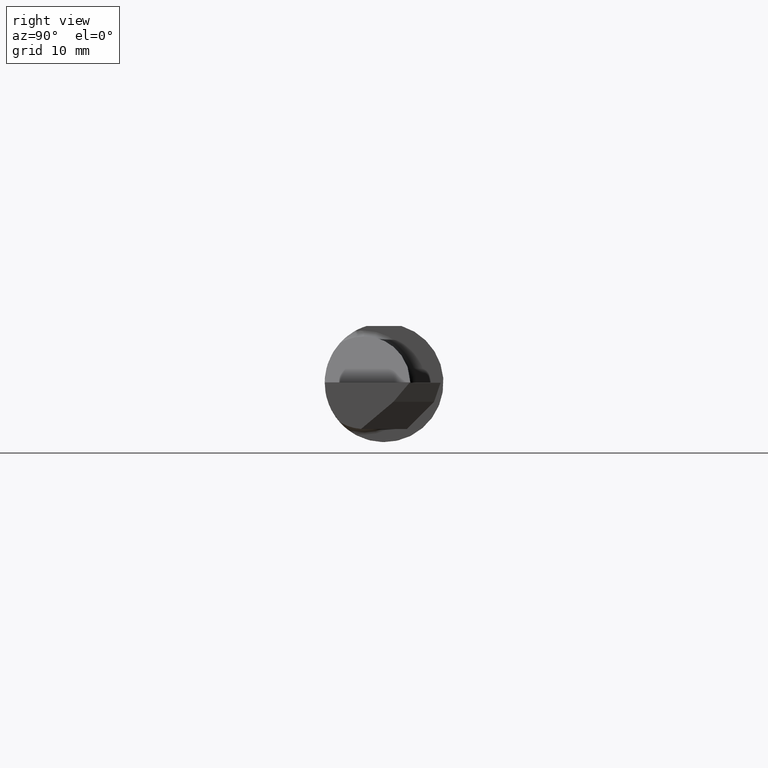
[diagram: clean part render]
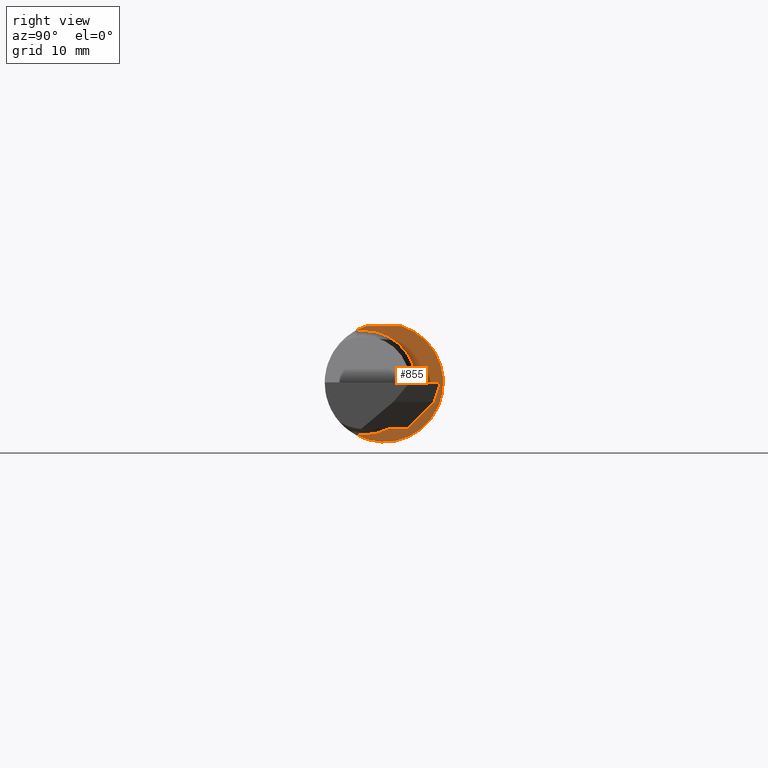
[diagram: same view with one face highlighted and labeled with its STEP entity id]
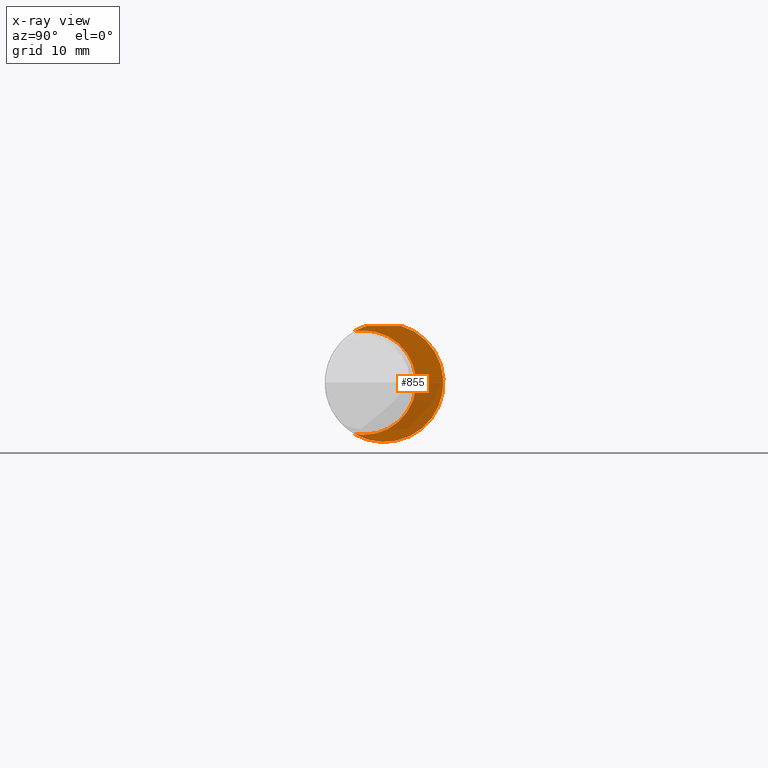
[diagram: x-ray of the same camera — body ghosted, the highlighted face saturated]
A machine part, right view. The second image highlights one B-rep face of the part: STEP entity #855.
The next image is the same camera in x-ray: the body ghosted, the highlighted face saturated — about 26% of this face is hidden behind the body in this view.
In plain terms, the highlighted planar face has unit normal (1, 0, 0).
Its self-contained STEP definition (entity closure, byte-faithful):
#52 = CARTESIAN_POINT ( 'NONE',  ( 1.925000000000000266, -0.1250709781968178946, -0.2162921009026707309 ) ) ;
#77 = DIRECTION ( 'NONE',  ( 0.000000000000000000, -1.000000000000000000, 0.000000000000000000 ) ) ;
#87 = DIRECTION ( 'NONE',  ( 0.000000000000000000, 0.000000000000000000, -1.000000000000000000 ) ) ;
#88 = VERTEX_POINT ( 'NONE', #965 ) ;
#90 = CARTESIAN_POINT ( 'NONE',  ( 1.925000000000000266, -0.08485000000000002263, 0.000000000000000000 ) ) ;
#95 = CIRCLE ( 'NONE', #170, 0.2200000000000000011 ) ;
#98 = DIRECTION ( 'NONE',  ( 0.000000000000000000, 0.000000000000000000, -1.000000000000000000 ) ) ;
#128 = VECTOR ( 'NONE', #77, 39.37007874015748143 ) ;
#148 = CARTESIAN_POINT ( 'NONE',  ( 1.925000000000000266, 0.1000000000000000056, 0.2388499999999999790 ) ) ;
#155 = CIRCLE ( 'NONE', #579, 0.2498499999999999888 ) ;
#156 = CIRCLE ( 'NONE', #580, 0.2200000000000000011 ) ;
#170 = AXIS2_PLACEMENT_3D ( 'NONE', #782, #353, #578 ) ;
#179 = EDGE_CURVE ( 'NONE', #519, #88, #879, .T. ) ;
#184 = DIRECTION ( 'NONE',  ( 0.000000000000000000, 0.000000000000000000, -1.000000000000000000 ) ) ;
#195 = AXIS2_PLACEMENT_3D ( 'NONE', #90, #775, #87 ) ;
#212 = DIRECTION ( 'NONE',  ( 1.000000000000000000, 0.000000000000000000, 0.000000000000000000 ) ) ;
#258 = FACE_OUTER_BOUND ( 'NONE', #909, .T. ) ;
#284 = CARTESIAN_POINT ( 'NONE',  ( 1.925000000000000266, -0.1250709781968178946, 0.2162921009026707309 ) ) ;
#287 = EDGE_CURVE ( 'NONE', #88, #473, #95, .T. ) ;
#317 = EDGE_CURVE ( 'NONE', #444, #519, #155, .T. ) ;
#353 = DIRECTION ( 'NONE',  ( -1.000000000000000000, -0.000000000000000000, -0.000000000000000000 ) ) ;
#363 = CARTESIAN_POINT ( 'NONE',  ( 1.925000000000000266, -0.08485000000000002263, -0.2200000000000000011 ) ) ;
#365 = VERTEX_POINT ( 'NONE', #933 ) ;
#400 = DIRECTION ( 'NONE',  ( -1.000000000000000000, -0.000000000000000000, -0.000000000000000000 ) ) ;
#417 = CARTESIAN_POINT ( 'NONE',  ( 1.925000000000000266, 0.000000000000000000, 0.000000000000000000 ) ) ;
#441 = ORIENTED_EDGE ( 'NONE', *, *, #802, .T. ) ;
#444 = VERTEX_POINT ( 'NONE', #747 ) ;
#471 = PLANE ( 'NONE',  #926 ) ;
#473 = VERTEX_POINT ( 'NONE', #363 ) ;
#476 = CARTESIAN_POINT ( 'NONE',  ( 1.925000000000000266, -0.08485000000000002263, 0.000000000000000000 ) ) ;
#502 = VERTEX_POINT ( 'NONE', #52 ) ;
#519 = VERTEX_POINT ( 'NONE', #284 ) ;
#538 = ORIENTED_EDGE ( 'NONE', *, *, #287, .T. ) ;
#566 = EDGE_CURVE ( 'NONE', #365, #444, #834, .T. ) ;
#578 = DIRECTION ( 'NONE',  ( 0.000000000000000000, 0.000000000000000000, -1.000000000000000000 ) ) ;
#579 = AXIS2_PLACEMENT_3D ( 'NONE', #417, #726, #184 ) ;
#580 = AXIS2_PLACEMENT_3D ( 'NONE', #476, #400, #797 ) ;
#603 = ORIENTED_EDGE ( 'NONE', *, *, #566, .T. ) ;
#726 = DIRECTION ( 'NONE',  ( 1.000000000000000000, 0.000000000000000000, 0.000000000000000000 ) ) ;
#740 = DIRECTION ( 'NONE',  ( 0.000000000000000000, 0.000000000000000000, -1.000000000000000000 ) ) ;
#747 = CARTESIAN_POINT ( 'NONE',  ( 1.925000000000000266, -0.07331916529803114702, 0.2388499999999999790 ) ) ;
#752 = AXIS2_PLACEMENT_3D ( 'NONE', #967, #212, #740 ) ;
#775 = DIRECTION ( 'NONE',  ( -1.000000000000000000, -0.000000000000000000, -0.000000000000000000 ) ) ;
#782 = CARTESIAN_POINT ( 'NONE',  ( 1.925000000000000266, -0.08485000000000002263, 0.000000000000000000 ) ) ;
#785 = DIRECTION ( 'NONE',  ( 1.000000000000000000, 0.000000000000000000, 0.000000000000000000 ) ) ;
#797 = DIRECTION ( 'NONE',  ( 0.000000000000000000, 0.000000000000000000, -1.000000000000000000 ) ) ;
#802 = EDGE_CURVE ( 'NONE', #473, #502, #156, .T. ) ;
#832 = CIRCLE ( 'NONE', #752, 0.2498499999999999888 ) ;
#834 = LINE ( 'NONE', #148, #128 ) ;
#855 = ADVANCED_FACE ( 'NONE', ( #258 ), #471, .T. ) ;
#868 = CARTESIAN_POINT ( 'NONE',  ( 1.925000000000000266, 0.3101499999999999813, 0.000000000000000000 ) ) ;
#879 = CIRCLE ( 'NONE', #195, 0.2200000000000000011 ) ;
#885 = ORIENTED_EDGE ( 'NONE', *, *, #981, .T. ) ;
#909 = EDGE_LOOP ( 'NONE', ( #939, #960, #538, #441, #885, #603 ) ) ;
#926 = AXIS2_PLACEMENT_3D ( 'NONE', #868, #785, #98 ) ;
#933 = CARTESIAN_POINT ( 'NONE',  ( 1.925000000000000266, 0.07331916529803135518, 0.2388499999999999790 ) ) ;
#939 = ORIENTED_EDGE ( 'NONE', *, *, #317, .T. ) ;
#960 = ORIENTED_EDGE ( 'NONE', *, *, #179, .T. ) ;
#965 = CARTESIAN_POINT ( 'NONE',  ( 1.925000000000000266, -0.08484999999999998099, 0.2200000000000000011 ) ) ;
#967 = CARTESIAN_POINT ( 'NONE',  ( 1.925000000000000266, 0.000000000000000000, 0.000000000000000000 ) ) ;
#981 = EDGE_CURVE ( 'NONE', #502, #365, #832, .T. ) ;